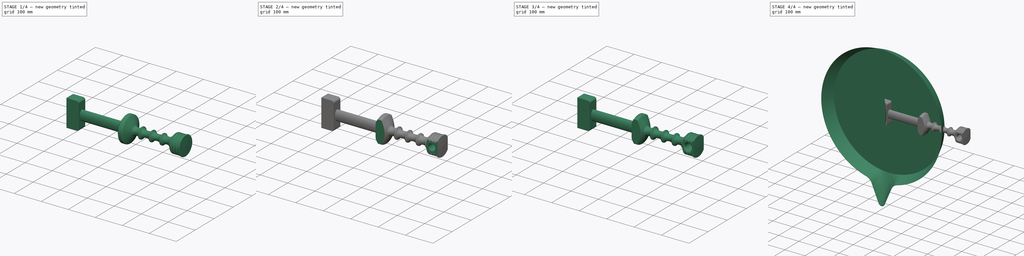
[diagram: build sequence overview — one tinted view per stage of 4, left to right]
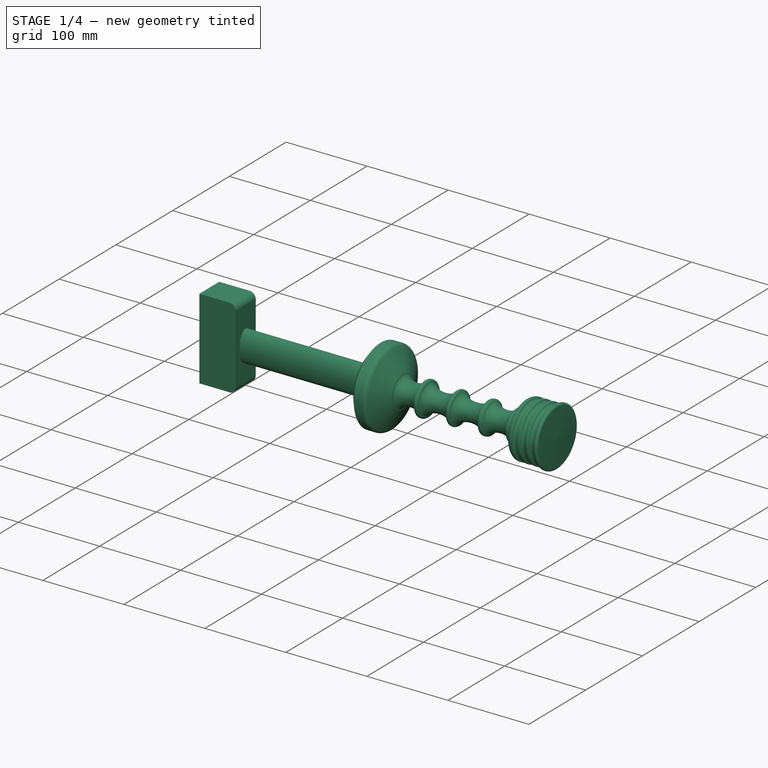
[diagram: stage 1 of 4 — iso view after this stage's code; geometry added in this stage tinted green]
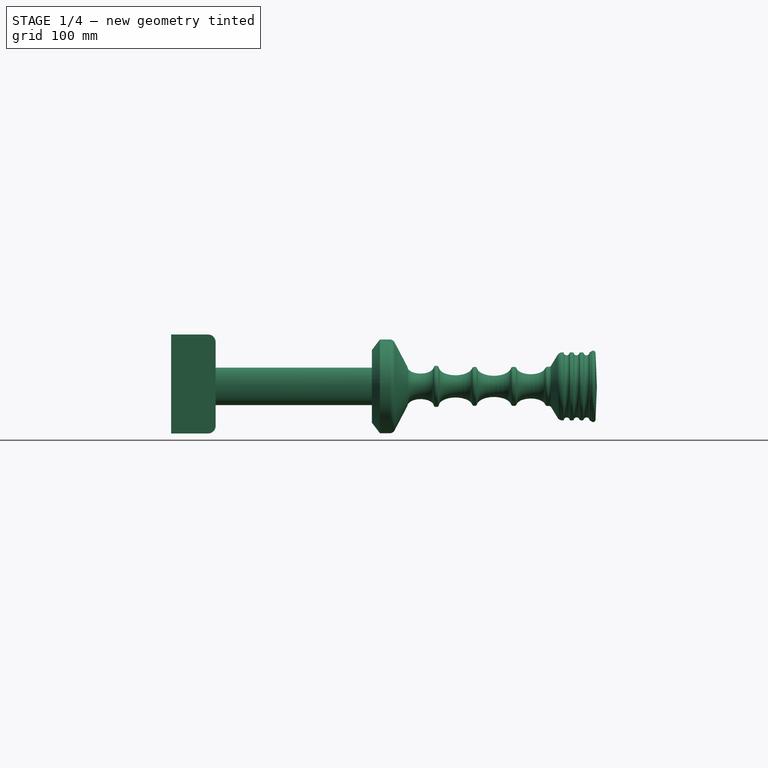
[diagram: stage 1 of 4 — front view after this stage's code; geometry added in this stage tinted green]
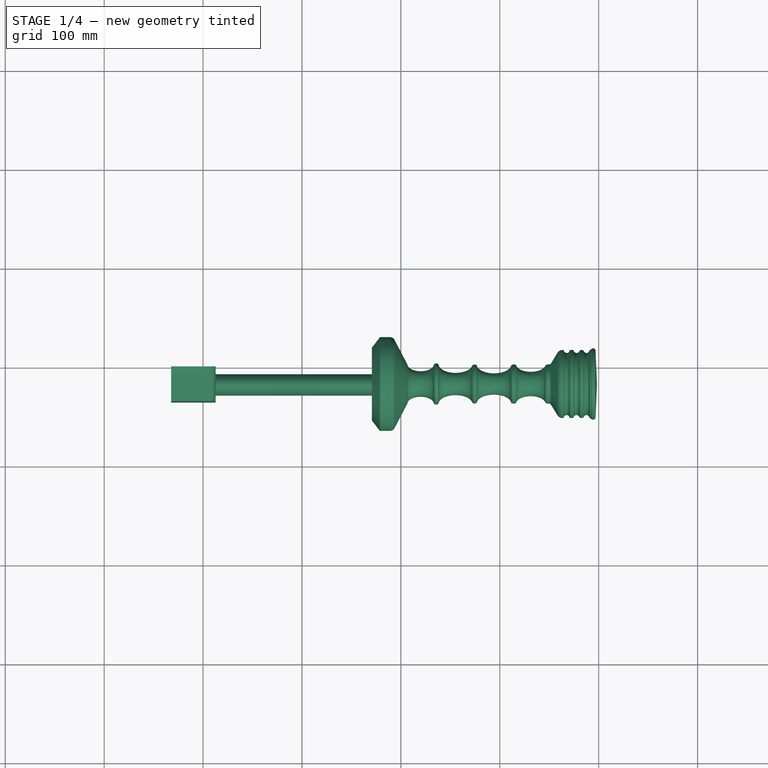
[diagram: stage 1 of 4 — top view after this stage's code; geometry added in this stage tinted green]
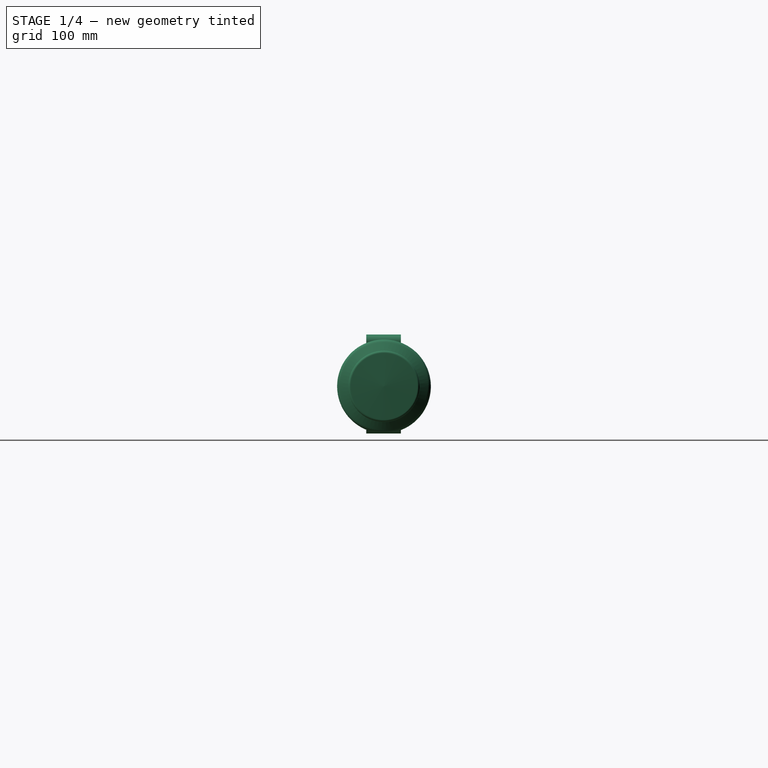
[diagram: stage 1 of 4 — right view after this stage's code; geometry added in this stage tinted green]
FCSTD DOCUMENT  (FreeCAD 0.21R33771 (Git))
Label: skovorodka
License: All rights reserved
LicenseURL: http://en.wikipedia.org/wiki/All_rights_reserved
objects: Sketcher::SketchObject×12, PartDesign::Fillet×3, PartDesign::Body×2, PartDesign::Pad×2, PartDesign::Pocket×2, PartDesign::AdditiveLoft×1, PartDesign::Thickness×1, PartDesign::Revolution×1, PartDesign::SubtractiveLoft×1
note: 36 computed .brp shape members not serialized (recipe doc carries the construction recipe); baked Part::Feature solids carry a one-line shape summary decoded from their .brp

FEATURE [PartDesign::Body] Body  label="skovorodka"
  Group = -> [Sketch,Sketch001,AdditiveLoft,Thickness]
  Origin = -> Origin
  Tip = -> Thickness
FEATURE [Sketcher::SketchObject] Sketch003
  FullyConstrained = false
  MapMode = 5
  Placement = pos=(0,0,0) rot=(1,0,0;1.5708rad)
  Support = -> [XZ_Plane001]
  sketch-geometry (11):
    g0: LineSegment StartX=-32.3521 StartY=-40.7187 StartZ=0 EndX=-32.3521 EndY=47.5134 EndZ=0
    g1: LineSegment StartX=-7.35107 StartY=52.3817 StartZ=0 EndX=5.14793 EndY=52.3817 EndZ=0
    g2: LineSegment StartX=12.6479 StartY=44.8817 StartZ=0 EndX=12.6479 EndY=-40.1183 EndZ=0
    g3: LineSegment StartX=5.14793 StartY=-47.6183 StartZ=0 EndX=-5.58319 EndY=-47.6183 EndZ=0
    g4: GeomPoint X=0 Y=0 Z=0
    g5: ArcOfCircle CenterX=5.14793 CenterY=44.8817 CenterZ=0 NormalX=0 NormalY=0 NormalZ=1 AngleXU=0 Radius=7.5 StartAngle=-9e-16 EndAngle=1.5708
    g6: ArcOfCircle CenterX=5.14793 CenterY=-40.1183 CenterZ=0 NormalX=0 NormalY=0 NormalZ=1 AngleXU=0 Radius=7.5 StartAngle=4.71239 EndAngle=6.28319
    g7: LineSegment StartX=-32.3521 StartY=-40.7187 StartZ=0 EndX=-32.3521 EndY=-47.6183 EndZ=0
    g8: LineSegment StartX=-5.58319 StartY=-47.6183 StartZ=0 EndX=-32.3521 EndY=-47.6183 EndZ=0
    g9: LineSegment StartX=-32.3521 StartY=47.5134 StartZ=0 EndX=-32.3521 EndY=52.3817 EndZ=0
    g10: LineSegment StartX=-7.35107 StartY=52.3817 StartZ=0 EndX=-32.3521 EndY=52.3817 EndZ=0
  constraints (23):
    c: Horizontal(g1)
    c: Horizontal(g3)
    c: Vertical(g0)
    c: Vertical(g2)
    c: Coincident(g4,g-1)
    c: Tangent(g1,g5) = 1.5708
    c: Tangent(g2,g5) = 1.5708
    c: Tangent(g2,g6) = 1.5708
    c: Tangent(g3,g6) = 1.5708
    c: Radius(g5) = 7.5
    c: Equal(g6,g5)
    c: Distance(g3,g1) = 100
    c: DistanceX(g0,g2) = 45
    c: Coincident(g7,g0)
    c: Vertical(g7)
    c: Coincident(g8,g3)
    c: Coincident(g8,g7)
    c: Horizontal(g8)
    c: Coincident(g9,g0)
    c: Vertical(g9)
    c: Coincident(g10,g1)
    c: Horizontal(g10)
    c: Coincident(g10,g9)
FEATURE [PartDesign::Pad] Pad
  Direction = (0,-1,-2e-16)
  Length = 35
  Length2 = 10
  Placement = pos=(0,0,0) rot=(1,0,0;1.5708rad)
  Profile = -> Sketch003
  ReferenceAxis = -> Sketch003 [N_Axis]
  Refine = true
  Type = 0
FEATURE [Sketcher::SketchObject] Sketch004
  FullyConstrained = false
  MapMode = 5
  Placement = pos=(12.6479,0,0) rot=(0.707107,0,0.707107;3.14159rad)
  Support = -> [Pad]
  sketch-geometry (5):
    g0: Ellipse CenterX=0 CenterY=17.8978 CenterZ=0 NormalX=0 NormalY=0 NormalZ=1 MajorRadius=18.9448 MinorRadius=10.773 AngleXU=0
    g1: LineSegment StartX=18.9448 StartY=17.8978 StartZ=0 EndX=-18.9448 EndY=17.8978 EndZ=0
    g2: LineSegment StartX=0 StartY=28.6708 StartZ=0 EndX=0 EndY=7.12472 EndZ=0
    g3: GeomPoint X=15.5835 Y=17.8978 Z=0
    g4: GeomPoint X=-15.5835 Y=17.8978 Z=0
  constraints (3):
    c: InternalAlignment(g1-g4 -> g0) x4
    c: PointOnObject(g0,g-2)
    c: Vertical(g2)
FEATURE [Sketcher::SketchObject] Sketch005
  AttachmentOffset = pos=(-43,0,17) rot=(0,0,1;0rad)
  FullyConstrained = false
  MapMode = 5
  Placement = pos=(-43,-17,-3.8e-15) rot=(1,0,0;1.5708rad)
  Support = -> [XZ_Plane001]
  sketch-geometry (55):
    g0: LineSegment StartX=213.633 StartY=0 StartZ=0 EndX=213.633 EndY=36.708 EndZ=0
    g1: LineSegment StartX=213.633 StartY=36.708 StartZ=0 EndX=221.774 EndY=47.3813 EndZ=0
    g2: LineSegment StartX=231.967 StartY=47.3813 StartZ=0 EndX=221.774 EndY=47.3813 EndZ=0
    g3: LineSegment StartX=236.541 StartY=44.6166 StartZ=0 EndX=249.578 EndY=19.7877 EndZ=0
    g4: ArcOfEllipse CenterX=262.919 CenterY=19.9117 CenterZ=0 NormalX=0 NormalY=0 NormalZ=1 MajorRadius=13.3428 MinorRadius=7 AngleXU=-3.14159 StartAngle=0.0177195 EndAngle=3.02543
    g5: LineSegment StartX=249.576 StartY=19.9117 StartZ=0 EndX=276.261 EndY=19.9117 EndZ=0
    g6: LineSegment StartX=262.919 StartY=12.9117 StartZ=0 EndX=262.919 EndY=26.9117 EndZ=0
    g7: GeomPoint X=251.56 Y=19.9117 Z=0
    g8: GeomPoint X=274.278 Y=19.9117 Z=0
    g9: LineSegment StartX=278.258 StartY=20.7737 StartZ=0 EndX=279.153 EndY=20.7737 EndZ=0
    g10: ArcOfEllipse CenterX=298.205 CenterY=19.7201 CenterZ=0 NormalX=0 NormalY=0 NormalZ=1 MajorRadius=16.9437 MinorRadius=8.5 AngleXU=-3.14159 StartAngle=0.0902405 EndAngle=2.94685
    g11: LineSegment StartX=281.261 StartY=19.7201 StartZ=0 EndX=315.149 EndY=19.7201 EndZ=0
    g12: LineSegment StartX=298.205 StartY=11.2201 StartZ=0 EndX=298.205 EndY=28.2201 EndZ=0
    g13: GeomPoint X=283.548 Y=19.7201 Z=0
    g14: GeomPoint X=312.863 Y=19.7201 Z=0
    g15: LineSegment StartX=317.202 StartY=19.692 StartZ=0 EndX=318.097 EndY=19.692 EndZ=0
    g16: ArcOfEllipse CenterX=337.089 CenterY=19.7066 CenterZ=0 NormalX=0 NormalY=0 NormalZ=1 MajorRadius=17.442 MinorRadius=9 AngleXU=-3.14159 StartAngle=0.147656 EndAngle=2.97809
    g17: LineSegment StartX=319.647 StartY=19.7066 StartZ=0 EndX=354.531 EndY=19.7066 EndZ=0
    g18: LineSegment StartX=337.089 StartY=10.7066 StartZ=0 EndX=337.089 EndY=28.7066 EndZ=0
    g19: GeomPoint X=322.149 Y=19.7066 Z=0
    g20: GeomPoint X=352.03 Y=19.7066 Z=0
    g21: LineSegment StartX=356.31 StartY=19.7103 StartZ=0 EndX=357.994 EndY=19.7103 EndZ=0
    g22: ArcOfEllipse CenterX=374.345 CenterY=19.769 CenterZ=0 NormalX=0 NormalY=0 NormalZ=1 MajorRadius=14.8016 MinorRadius=7.5 AngleXU=-3.14006 StartAngle=0.173804 EndAngle=2.91854
    g23: LineSegment StartX=359.543 StartY=19.7463 StartZ=0 EndX=389.146 EndY=19.7917 EndZ=0
    g24: LineSegment StartX=374.356 StartY=12.269 StartZ=0 EndX=374.333 EndY=27.269 EndZ=0
    g25: GeomPoint X=361.584 Y=19.7494 Z=0
    g26: GeomPoint X=387.106 Y=19.7886 Z=0
    g27: LineSegment StartX=391.375 StartY=19.8151 StartZ=0 EndX=392.761 EndY=19.8151 EndZ=0
    g28: LineSegment StartX=401.355 StartY=31.6947 StartZ=0 EndX=394.865 EndY=20.9998 EndZ=0
    g29: LineSegment StartX=406.129 StartY=34.3825 StartZ=0 EndX=407.118 EndY=34.3825 EndZ=0
    g30: LineSegment StartX=213.633 StartY=0 StartZ=0 EndX=441.181 EndY=0 EndZ=0
    g31: LineSegment StartX=439.799 StartY=33.6874 StartZ=0 EndX=441.181 EndY=0 EndZ=0
    g32: ArcOfCircle CenterX=278.258 CenterY=18.6363 CenterZ=0 NormalX=0 NormalY=0 NormalZ=1 AngleXU=0 Radius=2.1374 StartAngle=1.5708 EndAngle=2.92273
    g33: ArcOfCircle CenterX=279.153 CenterY=18.5614 CenterZ=0 NormalX=0 NormalY=0 NormalZ=1 AngleXU=0 Radius=2.21237 StartAngle=0.178455 EndAngle=1.5708
    g34: ArcOfCircle CenterX=317.202 CenterY=17.1422 CenterZ=0 NormalX=0 NormalY=0 NormalZ=1 AngleXU=0 Radius=2.5498 StartAngle=1.5708 EndAngle=2.76698
    g35: ArcOfCircle CenterX=318.097 CenterY=17.8809 CenterZ=0 NormalX=0 NormalY=0 NormalZ=1 AngleXU=0 Radius=1.81108 StartAngle=0.280649 EndAngle=1.5708
    g36: ArcOfCircle CenterX=356.31 CenterY=17.5986 CenterZ=0 NormalX=0 NormalY=0 NormalZ=1 AngleXU=0 Radius=2.1117 StartAngle=1.5708 EndAngle=2.83215
    g37: ArcOfCircle CenterX=357.994 CenterY=17.832 CenterZ=0 NormalX=0 NormalY=0 NormalZ=1 AngleXU=0 Radius=1.8783 StartAngle=0.335095 EndAngle=1.5708
    g38: ArcOfCircle CenterX=231.967 CenterY=42.2148 CenterZ=0 NormalX=0 NormalY=0 NormalZ=1 AngleXU=0 Radius=5.16655 StartAngle=0.483497 EndAngle=1.5708
    g39: ArcOfCircle CenterX=391.375 CenterY=16.9762 CenterZ=0 NormalX=0 NormalY=0 NormalZ=1 AngleXU=0 Radius=2.83888 StartAngle=1.5708 EndAngle=2.72223
    g40: ArcOfCircle CenterX=392.761 CenterY=22.2768 CenterZ=0 NormalX=0 NormalY=0 NormalZ=1 AngleXU=0 Radius=2.46166 StartAngle=4.71239 EndAngle=5.73782
    g41: ArcOfCircle CenterX=406.129 CenterY=28.7976 CenterZ=0 NormalX=0 NormalY=0 NormalZ=1 AngleXU=0 Radius=5.58491 StartAngle=1.5708 EndAngle=2.59622
    g42: ArcOfCircle CenterX=437.311 CenterY=33.5854 CenterZ=0 NormalX=0 NormalY=0 NormalZ=1 AngleXU=0 Radius=2.48981 StartAngle=0.0410012 EndAngle=2.46688
    g43: ArcOfCircle CenterX=410.623 CenterY=34.3825 CenterZ=0 NormalX=0 NormalY=0 NormalZ=1 AngleXU=0 Radius=3 StartAngle=3.29659 EndAngle=6.03008
    g44: ArcOfCircle CenterX=420.623 CenterY=34.3825 CenterZ=0 NormalX=0 NormalY=0 NormalZ=1 AngleXU=0 Radius=3 StartAngle=3.39666 EndAngle=5.91296
    g45: ArcOfCircle CenterX=430.623 CenterY=34.3825 CenterZ=0 NormalX=0 NormalY=0 NormalZ=1 AngleXU=0 Radius=3 StartAngle=3.44342 EndAngle=6.0505
    g46: LineSegment StartX=414.51 StartY=34.3873 StartZ=0 EndX=416.757 EndY=34.3743 EndZ=0
    g47: LineSegment StartX=425.021 StartY=34.3857 StartZ=0 EndX=426.564 EndY=34.3758 EndZ=0
    g48: LineSegment StartX=434.529 StartY=34.8192 StartZ=0 EndX=435.367 EndY=35.1407 EndZ=0
    g49: ArcOfCircle CenterX=407.118 CenterY=33.8348 CenterZ=0 NormalX=0 NormalY=0 NormalZ=1 AngleXU=0 Radius=0.547663 StartAngle=0.154993 EndAngle=1.5708
    g50: ArcOfCircle CenterX=414.504 CenterY=33.3787 CenterZ=0 NormalX=0 NormalY=0 NormalZ=1 AngleXU=0 Radius=1.00859 StartAngle=1.56503 EndAngle=2.88849
    g51: ArcOfCircle CenterX=416.751 CenterY=33.3729 CenterZ=0 NormalX=0 NormalY=0 NormalZ=1 AngleXU=0 Radius=1.00143 StartAngle=0.255065 EndAngle=1.56503
    g52: ArcOfCircle CenterX=425.01 CenterY=32.6798 CenterZ=0 NormalX=0 NormalY=0 NormalZ=1 AngleXU=0 Radius=1.70597 StartAngle=1.56436 EndAngle=2.77137
    g53: ArcOfCircle CenterX=426.556 CenterY=33.1163 CenterZ=0 NormalX=0 NormalY=0 NormalZ=1 AngleXU=0 Radius=1.25952 StartAngle=0.301826 EndAngle=1.56436
    g54: ArcOfCircle CenterX=435.104 CenterY=33.3206 CenterZ=0 NormalX=0 NormalY=0 NormalZ=1 AngleXU=0 Radius=1.60512 StartAngle=1.93717 EndAngle=2.9089
  constraints (69):
    c: Vertical(g0)
    c: Coincident(g2,g1)
    c: Horizontal(g2)
    c: InternalAlignment(g5-g8 -> g4) x4
    c: Horizontal(g5)
    c: Horizontal(g9)
    c: InternalAlignment(g11-g14 -> g10) x4
    c: Coincident(g1,g0)
    c: PointOnObject(g0,g-1)
    c: Horizontal(g11)
    c: DistanceX(g5,g11) = 5
    c: Horizontal(g15)
    c: InternalAlignment(g17-g20 -> g16) x4
    c: Equal(g9,g15)
    c: Horizontal(g17)
    c: Horizontal(g21)
    c: InternalAlignment(g23-g26 -> g22) x4
    c: Distance(g6,g6) = 14
    c: Distance(g12,g12) = 17
    c: Distance(g18,g18) = 18
    c: Distance(g24,g24) = 15
    c: Horizontal(g27)
    c: Horizontal(g29)
    c: Coincident(g30,g0)
    c: PointOnObject(g30,g-1)
    c: Coincident(g31,g30)
    c: Coincident(g4,g3)
    c: Tangent(g4,g32) = 1.5708
    c: Tangent(g9,g32) = 1.5708
    c: Tangent(g9,g33) = 1.5708
    c: Tangent(g10,g33) = 1.5708
    c: Tangent(g10,g34) = 1.5708
    c: Tangent(g15,g34) = 1.5708
    c: Tangent(g15,g35) = 1.5708
    c: Tangent(g16,g35) = 1.5708
    c: Tangent(g16,g36) = 1.5708
    c: Tangent(g21,g36) = 1.5708
    c: Tangent(g21,g37) = 1.5708
    c: Tangent(g22,g37) = 1.5708
    c: Tangent(g2,g38) = -1.5708
    c: Tangent(g3,g38) = 1.5708
    c: Tangent(g22,g39) = 1.5708
    c: Tangent(g27,g39) = 1.5708
    c: Tangent(g27,g40) = -1.5708
    c: Tangent(g28,g40) = 1.5708
    c: Tangent(g28,g41) = -1.5708
    c: Tangent(g29,g41) = 1.5708
    c: Coincident(g48,g42) = 1.5708
    c: Tangent(g31,g42) = 1.5708
    c: PointOnObject(g43,g29)
    c: PointOnObject(g44,g29)
    c: PointOnObject(g45,g29)
    c: DistanceX(g43,g44) = 10
    c: DistanceX(g44,g45) = 10
    c: Radius(g43) = 3
    c: Radius(g44) = 3
    c: Radius(g45) = 3
    c: Tangent(g29,g49) = 1.5708
    c: Tangent(g43,g49) = 1.5708
    c: Tangent(g46,g50) = 1.5708
    c: Tangent(g43,g50) = 1.5708
    c: Tangent(g46,g51) = 1.5708
    c: Tangent(g44,g51) = 1.5708
    c: Tangent(g44,g52) = 1.5708
    c: Tangent(g47,g52) = 1.5708
    c: Tangent(g47,g53) = 1.5708
    c: Tangent(g45,g53) = 1.5708
    c: Tangent(g45,g54) = 1.5708
    c: Tangent(g48,g54) = 1.5708
FEATURE [Sketcher::SketchObject] Sketch006
  FullyConstrained = true
  MapMode = 5
  Placement = pos=(0,0,0) rot=(1,0,0;1.5708rad)
  Support = -> [XZ_Plane001]
FEATURE [PartDesign::Pad] Pad001
  BaseFeature = -> Pad
  Direction = (1,0,-2e-16)
  Length = 160
  Length2 = 10
  Placement = pos=(0,0,0) rot=(1,0,0;1.5708rad)
  Profile = -> Sketch004
  ReferenceAxis = -> Sketch004 [N_Axis]
  Refine = true
  Type = 0
FEATURE [PartDesign::Revolution] Revolution
  Angle = 360
  Axis = (1,0,0)
  Base = (-43,-17,-3.8e-15)
  BaseFeature = -> Pad001
  Placement = pos=(0,0,0) rot=(1,0,0;1.5708rad)
  Profile = -> Sketch005
  ReferenceAxis = -> Sketch005 [H_Axis]
  Refine = true
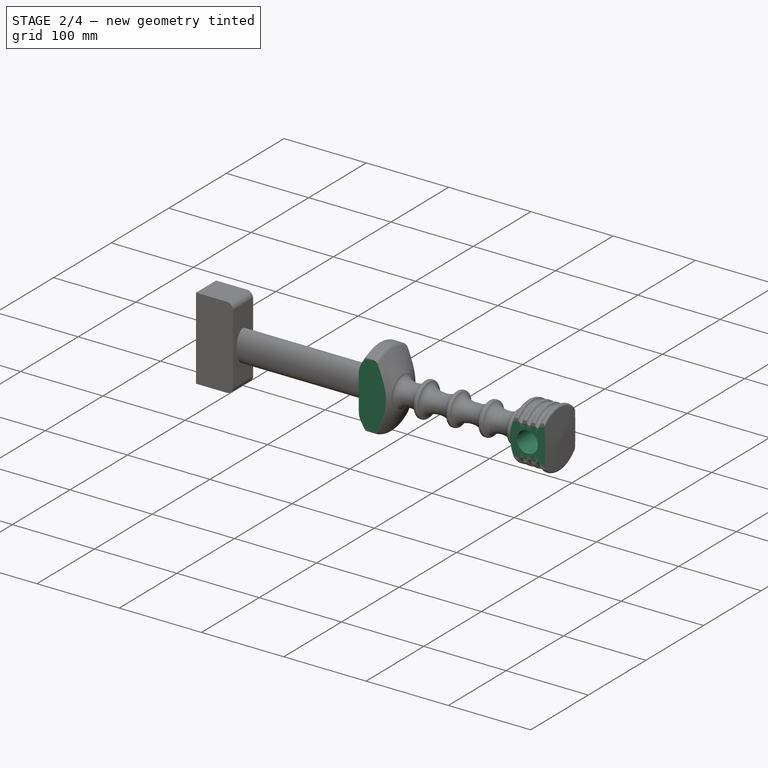
[diagram: stage 2 of 4 — iso view after this stage's code; geometry added in this stage tinted green]
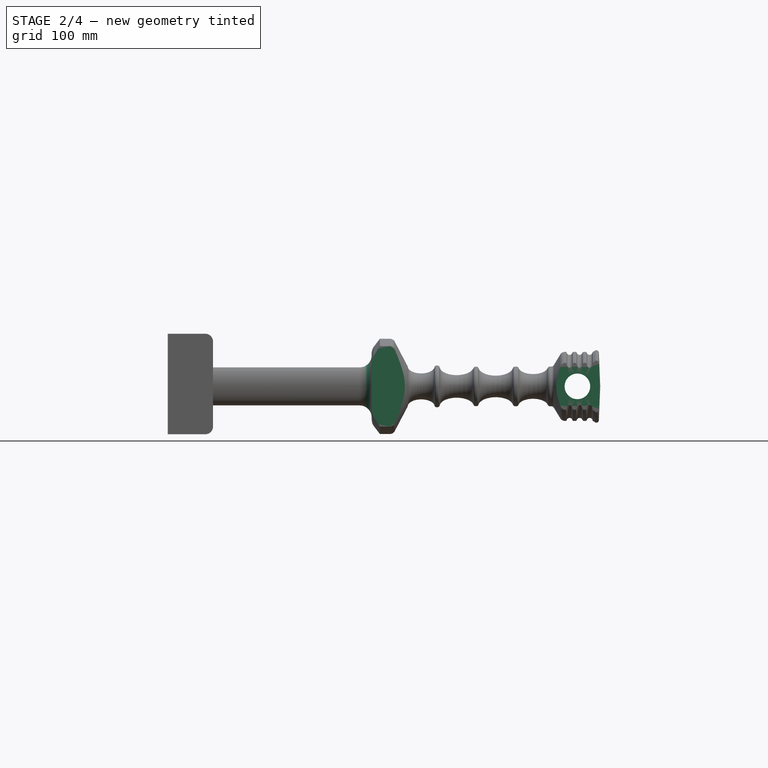
[diagram: stage 2 of 4 — front view after this stage's code; geometry added in this stage tinted green]
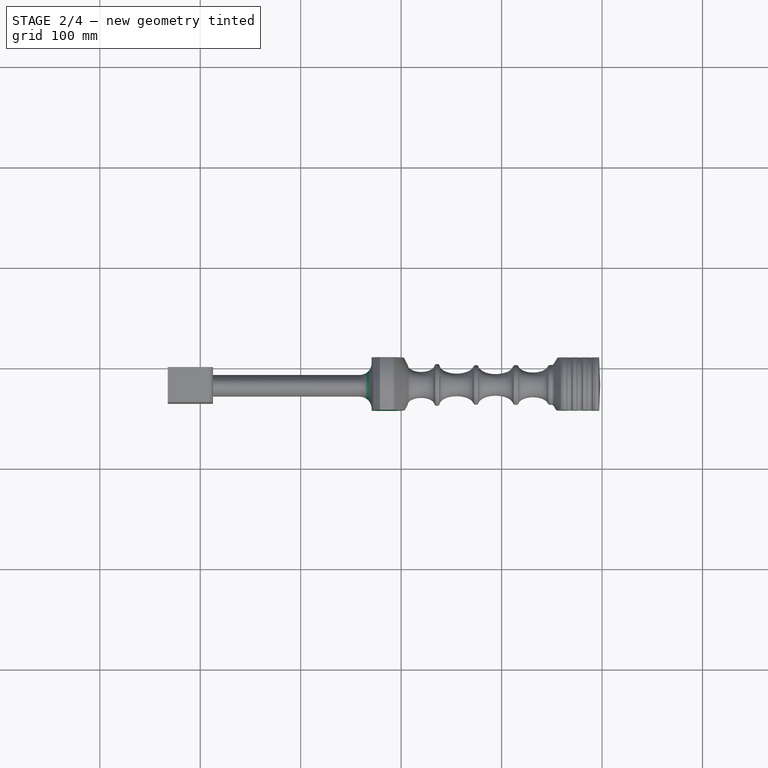
[diagram: stage 2 of 4 — top view after this stage's code; geometry added in this stage tinted green]
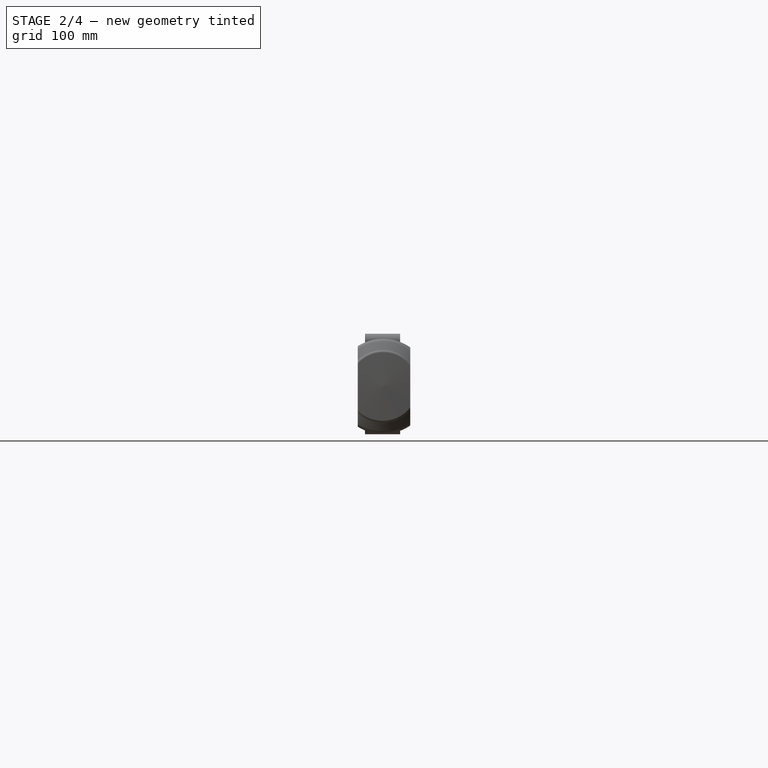
[diagram: stage 2 of 4 — right view after this stage's code; geometry added in this stage tinted green]
FEATURE [PartDesign::Fillet] Fillet
  Base = -> Revolution [Face10]
  BaseFeature = -> Revolution
  Placement = pos=(0,0,0) rot=(1,0,0;1.5708rad)
  Radius = 12
  Refine = true
  SupportTransform = false
  UseAllEdges = false
FEATURE [Sketcher::SketchObject] Sketch007
  FullyConstrained = true
  MapMode = 5
  Support = -> [XY_Plane001]
FEATURE [Sketcher::SketchObject] Sketch008
  FullyConstrained = true
  MapMode = 5
  Support = -> [XY_Plane001]
FEATURE [Sketcher::SketchObject] Sketch009
  FullyConstrained = false
  MapMode = 5
  Placement = pos=(0,0,0) rot=(0.57735,0.57735,0.57735;2.0944rad)
  Support = -> [YZ_Plane001]
  sketch-geometry (8):
    g0: LineSegment StartX=10.0908 StartY=84.7197 StartZ=0 EndX=43.1353 EndY=84.7197 EndZ=0
    g1: LineSegment StartX=43.1353 StartY=84.7197 StartZ=0 EndX=43.1353 EndY=-211.028 EndZ=0
    g2: LineSegment StartX=43.1353 StartY=-211.028 StartZ=0 EndX=10.0908 EndY=-211.028 EndZ=0
    g3: LineSegment StartX=10.0908 StartY=-211.028 StartZ=0 EndX=10.0908 EndY=84.7197 EndZ=0
    g4: LineSegment StartX=-74.0203 StartY=69.6893 StartZ=0 EndX=-42.2757 EndY=69.6893 EndZ=0
    g5: LineSegment StartX=-42.2757 StartY=69.6893 StartZ=0 EndX=-42.2757 EndY=-245.608 EndZ=0
    g6: LineSegment StartX=-42.2757 StartY=-245.608 StartZ=0 EndX=-74.0203 EndY=-245.608 EndZ=0
    g7: LineSegment StartX=-74.0203 StartY=-245.608 StartZ=0 EndX=-74.0203 EndY=69.6893 EndZ=0
  constraints (16):
    c: Coincident(g0,g1)
    c: Coincident(g1,g2)
    c: Coincident(g2,g3)
    c: Coincident(g3,g0)
    c: Horizontal(g0)
    c: Horizontal(g2)
    c: Vertical(g1)
    c: Vertical(g3)
    c: Coincident(g4,g5)
    c: Coincident(g5,g6)
    c: Coincident(g6,g7)
    c: Coincident(g7,g4)
    c: Horizontal(g4)
    c: Horizontal(g6)
    c: Vertical(g5)
    c: Vertical(g7)
FEATURE [PartDesign::Pocket] Pocket
  BaseFeature = -> Fillet
  Direction = (-1,2e-16,-3e-16)
  Length = 400
  Length2 = 5
  Placement = pos=(0,0,0) rot=(1,0,0;1.5708rad)
  Profile = -> Sketch009
  ReferenceAxis = -> Sketch009 [N_Axis]
  Refine = true
  Reversed = true
  Type = 0
FEATURE [Sketcher::SketchObject] Sketch010
  FullyConstrained = false
  MapMode = 5
  Placement = pos=(-9.4e-15,-42.2757,9.4e-15) rot=(1,0,0;1.5708rad)
  Support = -> [Pocket]
  sketch-geometry (1):
    g0: Circle CenterX=375.453 CenterY=0.029381 CenterZ=0 NormalX=0 NormalY=0 NormalZ=1 AngleXU=0 Radius=12.7275
FEATURE [PartDesign::Pocket] Pocket001
  BaseFeature = -> Pocket
  Direction = (2e-16,1,-2e-16)
  Length = 5
  Length2 = 5
  Placement = pos=(0,0,0) rot=(1,0,0;1.5708rad)
  Profile = -> Sketch010
  ReferenceAxis = -> Sketch010 [N_Axis]
  Refine = true
  Type = 1
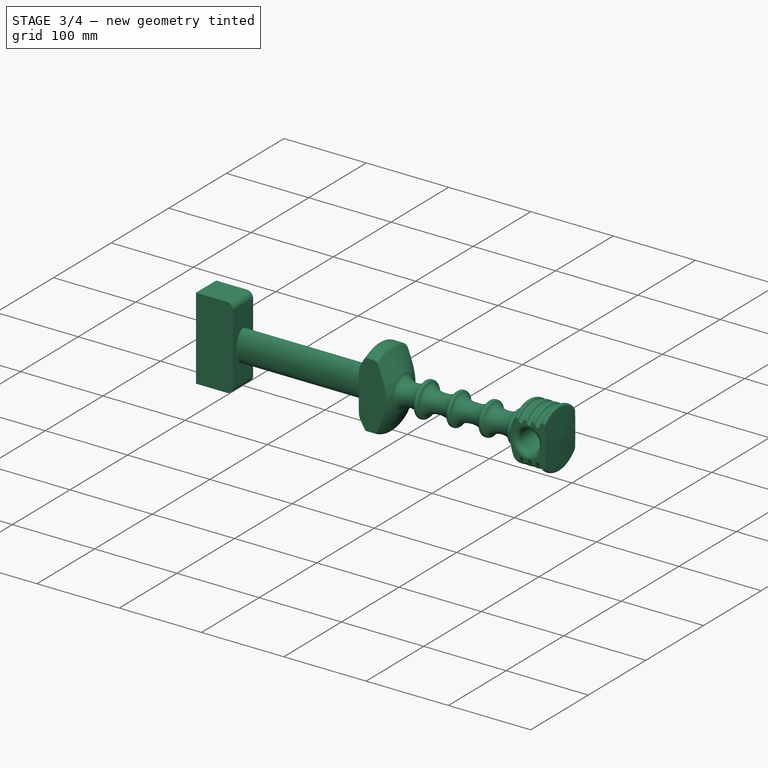
[diagram: stage 3 of 4 — iso view after this stage's code; geometry added in this stage tinted green]
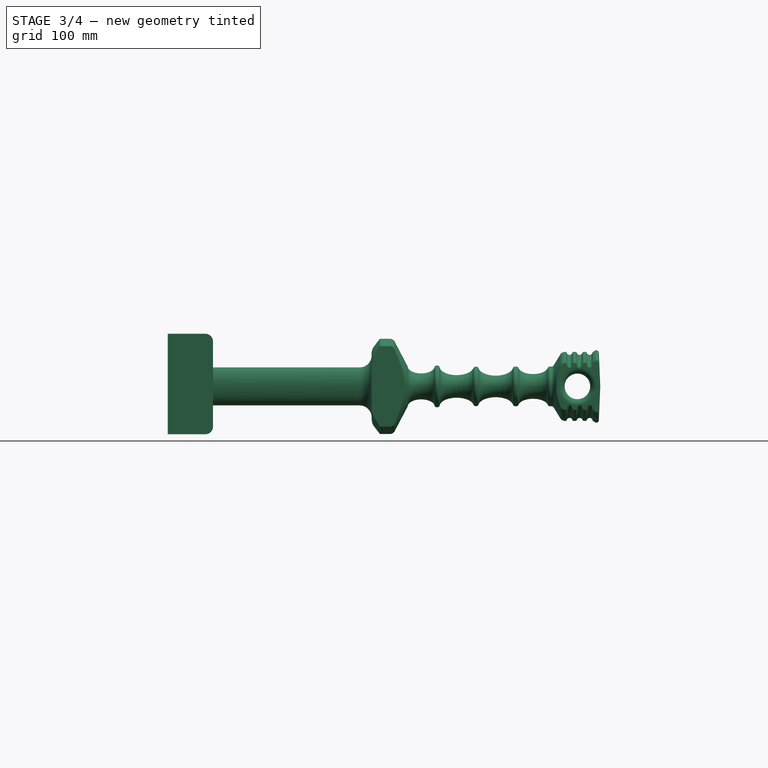
[diagram: stage 3 of 4 — front view after this stage's code; geometry added in this stage tinted green]
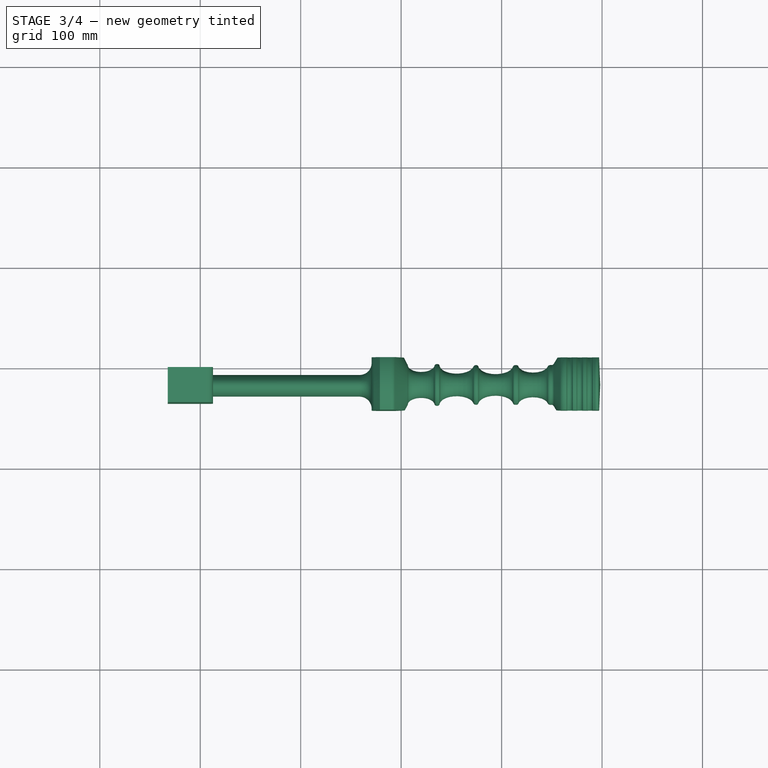
[diagram: stage 3 of 4 — top view after this stage's code; geometry added in this stage tinted green]
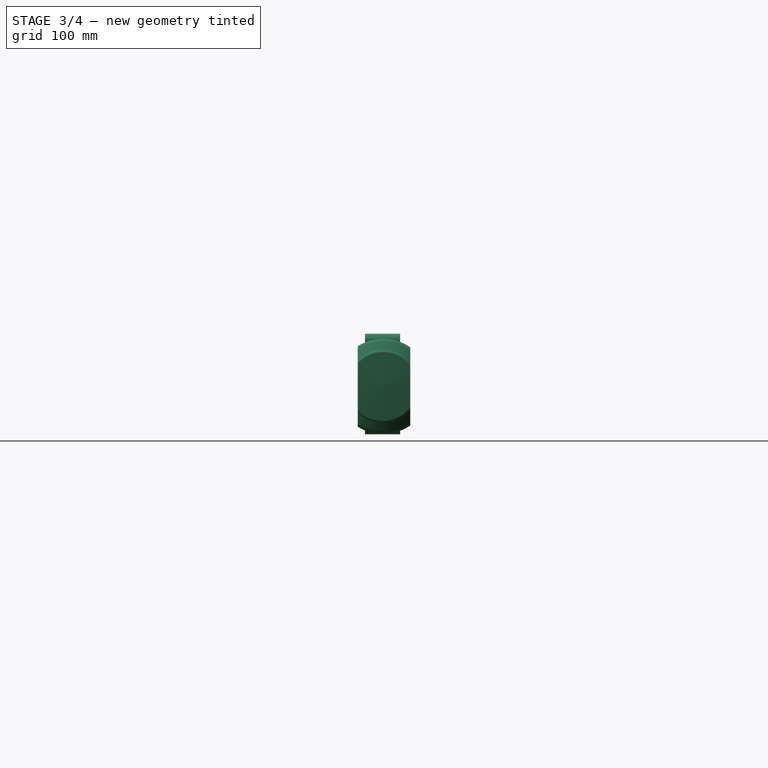
[diagram: stage 3 of 4 — right view after this stage's code; geometry added in this stage tinted green]
FEATURE [PartDesign::Fillet] Fillet001
  Base = -> Pocket001 [Edge135]
  BaseFeature = -> Pocket001
  Placement = pos=(0,0,0) rot=(1,0,0;1.5708rad)
  Radius = 4
  Refine = true
  SupportTransform = false
  UseAllEdges = false
FEATURE [PartDesign::Fillet] Fillet002
  Base = -> Fillet001 [Edge106]
  BaseFeature = -> Fillet001
  Placement = pos=(0,0,0) rot=(1,0,0;1.5708rad)
  Radius = 6
  Refine = true
  SupportTransform = false
  UseAllEdges = false
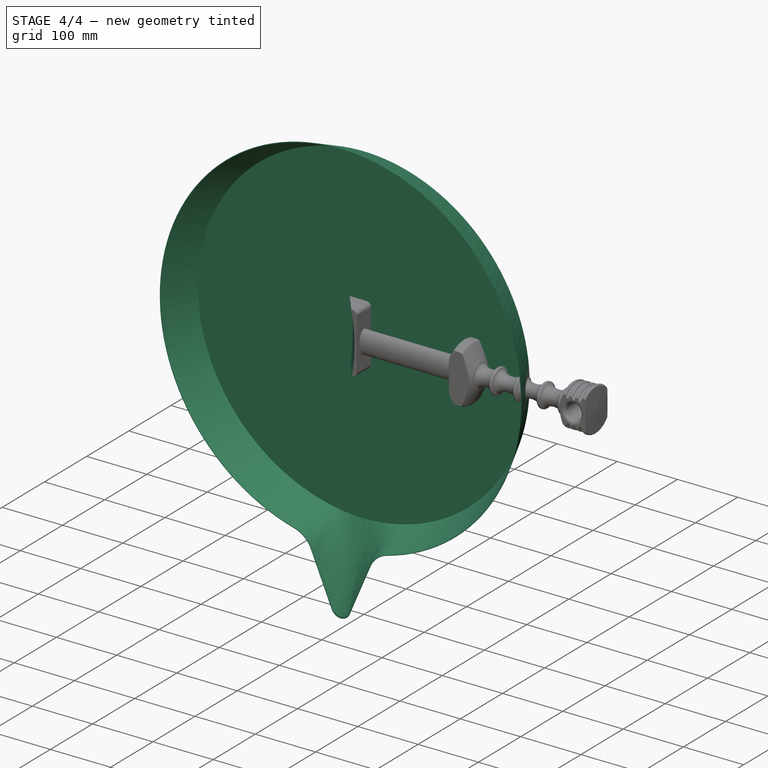
[diagram: stage 4 of 4 — iso view after this stage's code; geometry added in this stage tinted green]
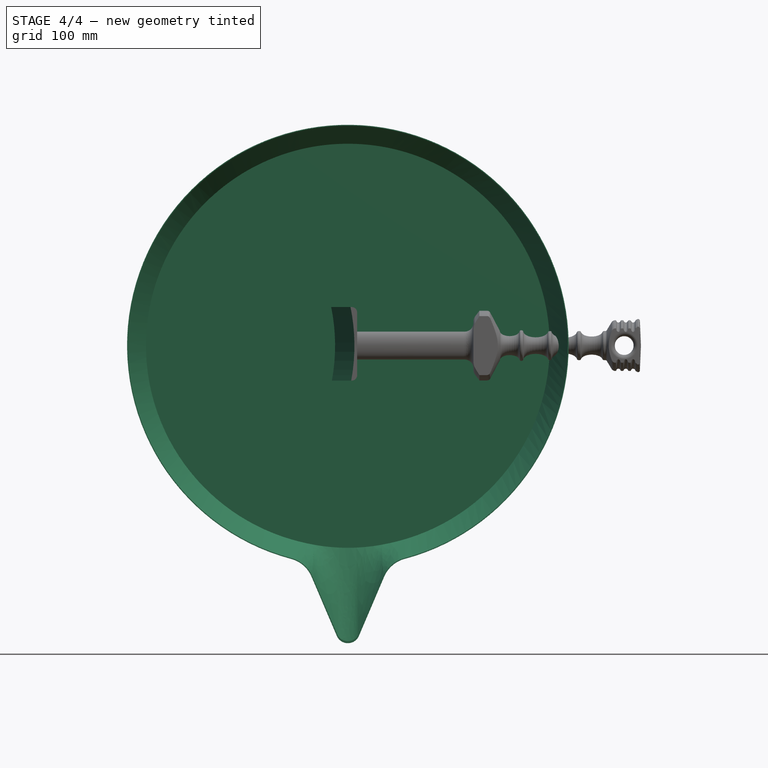
[diagram: stage 4 of 4 — front view after this stage's code; geometry added in this stage tinted green]
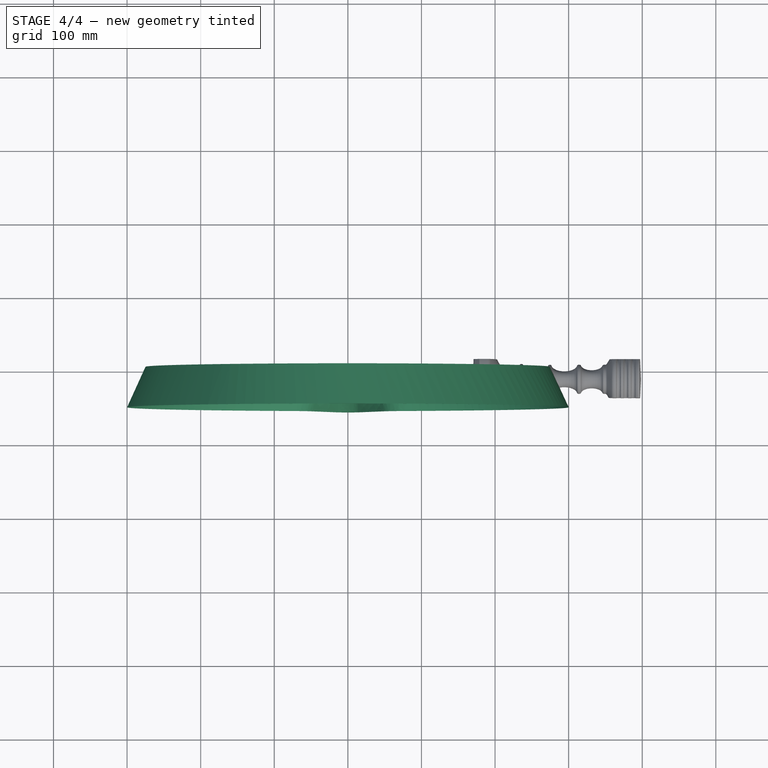
[diagram: stage 4 of 4 — top view after this stage's code; geometry added in this stage tinted green]
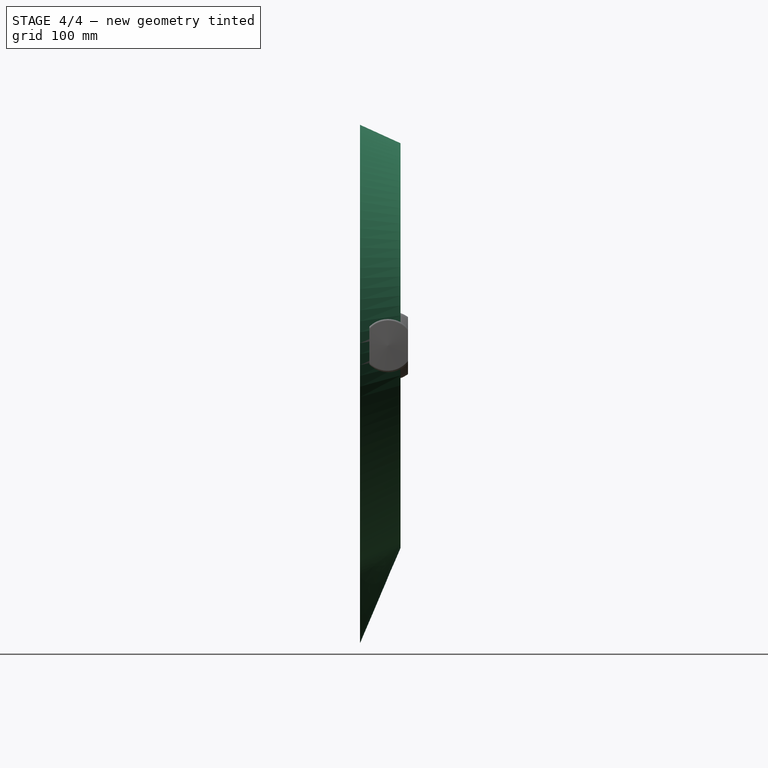
[diagram: stage 4 of 4 — right view after this stage's code; geometry added in this stage tinted green]
FEATURE [Sketcher::SketchObject] Sketch
  FullyConstrained = true
  MapMode = 5
  Placement = pos=(0,0,0) rot=(1,0,0;1.5708rad)
  Support = -> [XZ_Plane]
  sketch-geometry (1):
    g0: Circle CenterX=0 CenterY=0 CenterZ=0 NormalX=0 NormalY=0 NormalZ=1 AngleXU=0 Radius=275
  constraints (2):
    c: Coincident(g0,g-1)
    c: Diameter(g0) = 550
FEATURE [Sketcher::SketchObject] Sketch001
  AttachmentOffset = pos=(0,0,55) rot=(0,0,1;0rad)
  FullyConstrained = false
  MapMode = 5
  Placement = pos=(0,-55,-1.22e-14) rot=(1,0,0;1.5708rad)
  Support = -> [XZ_Plane]
  sketch-geometry (6):
    g0: ArcOfCircle CenterX=0 CenterY=0 CenterZ=0 NormalX=0 NormalY=0 NormalZ=1 AngleXU=0 Radius=300 StartAngle=4.97251 EndAngle=10.7355
    g1: ArcOfCircle CenterX=0 CenterY=-387.987 CenterZ=0 NormalX=0 NormalY=0 NormalZ=1 AngleXU=0 Radius=16.3888 StartAngle=3.48254 EndAngle=5.94224
    g2: LineSegment StartX=15.4454 StartY=-393.467 StartZ=0 EndX=49.3268 EndY=-314.019 EndZ=0
    g3: LineSegment StartX=-15.4454 StartY=-393.467 StartZ=0 EndX=-49.3268 EndY=-314.019 EndZ=0
    g4: ArcOfCircle CenterX=-87.9604 CenterY=-330.495 CenterZ=0 NormalX=0 NormalY=0 NormalZ=1 AngleXU=0 Radius=42 StartAngle=0.403108 EndAngle=1.31068
    g5: ArcOfCircle CenterX=87.9604 CenterY=-330.495 CenterZ=0 NormalX=0 NormalY=0 NormalZ=1 AngleXU=0 Radius=42 StartAngle=1.83091 EndAngle=2.73849
  constraints (13):
    c: Coincident(g0,g-1)
    c: Radius(g0) = 300
    c: PointOnObject(g1,g-2)
    c: Coincident(g1,g2)
    c: Coincident(g1,g3)
    c: Tangent(g0,g4) = 1.5708
    c: Tangent(g3,g4) = -1.5708
    c: Tangent(g2,g5) = 1.5708
    c: Tangent(g0,g5) = 1.5708
    c: Angle(g4) = 0.907571
    c: Angle(g5) = 0.907571
    c: Radius(g5) = 42
    c: Symmetric(g3,g2,g-2)
FEATURE [PartDesign::AdditiveLoft] AdditiveLoft
  Closed = false
  Placement = pos=(0,0,0) rot=(1,0,0;1.5708rad)
  Profile = -> Sketch
  Refine = true
  Ruled = false
  Sections = -> [Sketch001]
FEATURE [PartDesign::Thickness] Thickness
  Base = -> AdditiveLoft [Face3]
  BaseFeature = -> AdditiveLoft
  Intersection = false
  Join = 0
  Mode = 0
  Refine = true
  Reversed = true
  SupportTransform = false
  Value = 1.1
FEATURE [Sketcher::SketchObject] Sketch011
  AttachmentOffset = pos=(-285,0,125) rot=(0,1,0;0.296706rad)
  FullyConstrained = false
  MapMode = 5
  Placement = pos=(-285,-125,-2.78e-14) rot=(0.978386,0.146221,0.146221;1.59265rad)
  Support = -> [XZ_Plane001]
  sketch-geometry (4):
    g0: ArcOfCircle CenterX=0 CenterY=0 CenterZ=0 NormalX=0 NormalY=0 NormalZ=1 AngleXU=0 Radius=307.438 StartAngle=5.98609 EndAngle=6.58028
    g1: LineSegment StartX=293.969 StartY=-90 StartZ=0 EndX=-0.294014 EndY=-90 EndZ=0
    g2: LineSegment StartX=-0.294014 StartY=-90 StartZ=0 EndX=-0.294014 EndY=90 EndZ=0
    g3: LineSegment StartX=-0.294014 StartY=90 StartZ=0 EndX=293.969 EndY=90 EndZ=0
  constraints (10):
    c: Coincident(g0,g-1)
    c: DistanceY(g0,g-1) = 90
    c: DistanceY(g-1,g0) = 90
    c: Coincident(g1,g2)
    c: Coincident(g2,g3)
    c: Horizontal(g1)
    c: Horizontal(g3)
    c: Vertical(g2)
    c: Coincident(g1,g0)
    c: Coincident(g3,g0)
FEATURE [Sketcher::SketchObject] Sketch012
  AttachmentOffset = pos=(-316,0,84) rot=(0,1,0;0.296706rad)
  FullyConstrained = false
  MapMode = 5
  Placement = pos=(-316,-84,-1.87e-14) rot=(0.978386,0.146221,0.146221;1.59265rad)
  Support = -> [XZ_Plane001]
  sketch-geometry (4):
    g0: ArcOfCircle CenterX=0 CenterY=0 CenterZ=0 NormalX=0 NormalY=0 NormalZ=1 AngleXU=0 Radius=306.804 StartAngle=5.98546 EndAngle=6.58091
    g1: LineSegment StartX=293.307 StartY=-90 StartZ=0 EndX=-0.294014 EndY=-90 EndZ=0
    g2: LineSegment StartX=-0.294014 StartY=-90 StartZ=0 EndX=-0.294014 EndY=90 EndZ=0
    g3: LineSegment StartX=-0.294014 StartY=90 StartZ=0 EndX=293.307 EndY=90 EndZ=0
  constraints (10):
    c: Coincident(g0,g-1)
    c: DistanceY(g0,g-1) = 90
    c: DistanceY(g-1,g0) = 90
    c: Coincident(g1,g2)
    c: Coincident(g2,g3)
    c: Horizontal(g1)
    c: Horizontal(g3)
    c: Vertical(g2)
    c: Coincident(g1,g0)
    c: Coincident(g3,g0)
FEATURE [PartDesign::SubtractiveLoft] SubtractiveLoft
  BaseFeature = -> Fillet002
  Closed = false
  Placement = pos=(0,0,0) rot=(1,0,0;1.5708rad)
  Profile = -> Sketch011
  Refine = true
  Ruled = false
  Sections = -> [Sketch012]
FEATURE [PartDesign::Body] Body001  label="rukojatka"
  Group = -> [Sketch003,Pad,Sketch004,Pad001,Sketch005,Revolution,Fillet,Sketch006,Sketch007,Sketch008,Sketch009,Pocket,Sketch010,Pocket001,Fillet001,Fillet002,Sketch011,Sketch012,SubtractiveLoft]
  Origin = -> Origin001
  Placement = pos=(295,-8,0) rot=(0,0,1;-0.244346rad)
  Tip = -> SubtractiveLoft
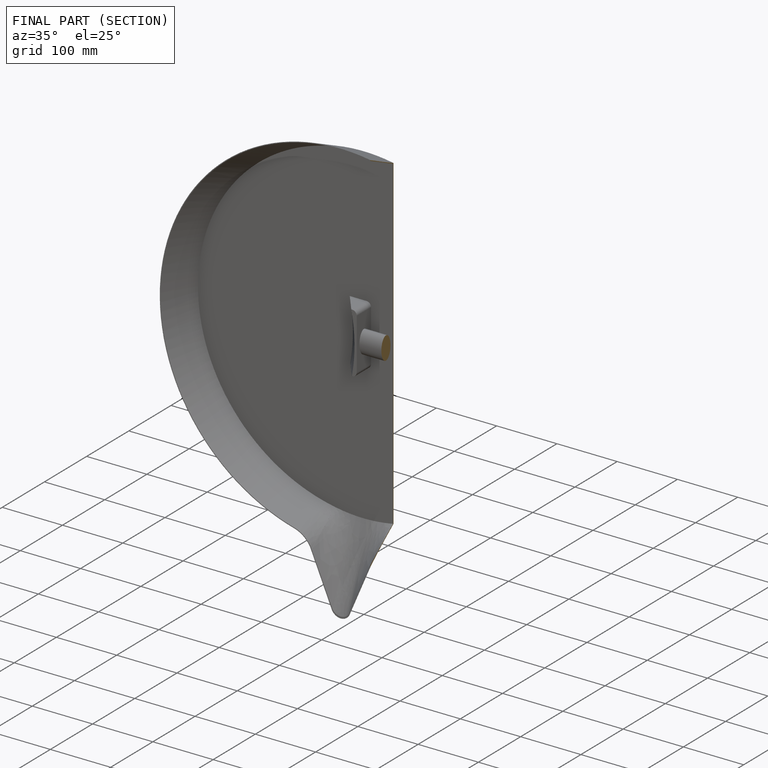
[diagram: finished part — half-section view (interior)]
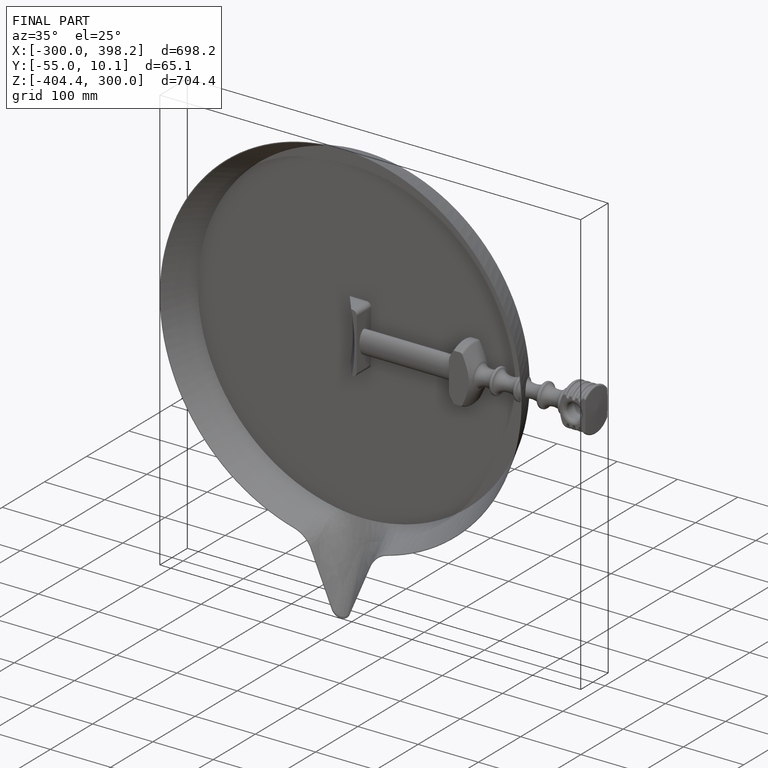
[diagram: finished part — iso view with bounding-box wireframe]
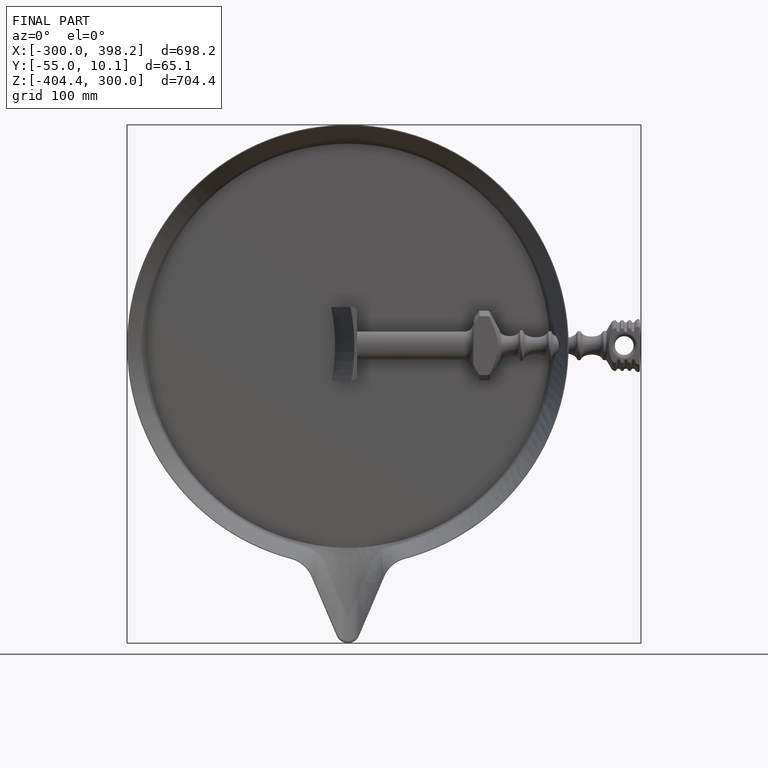
[diagram: finished part — front view with bounding-box wireframe]
